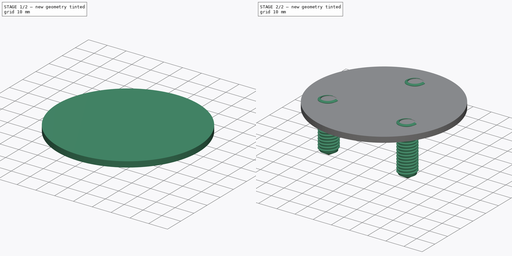
[diagram: build sequence overview — one tinted view per stage of 2, left to right]
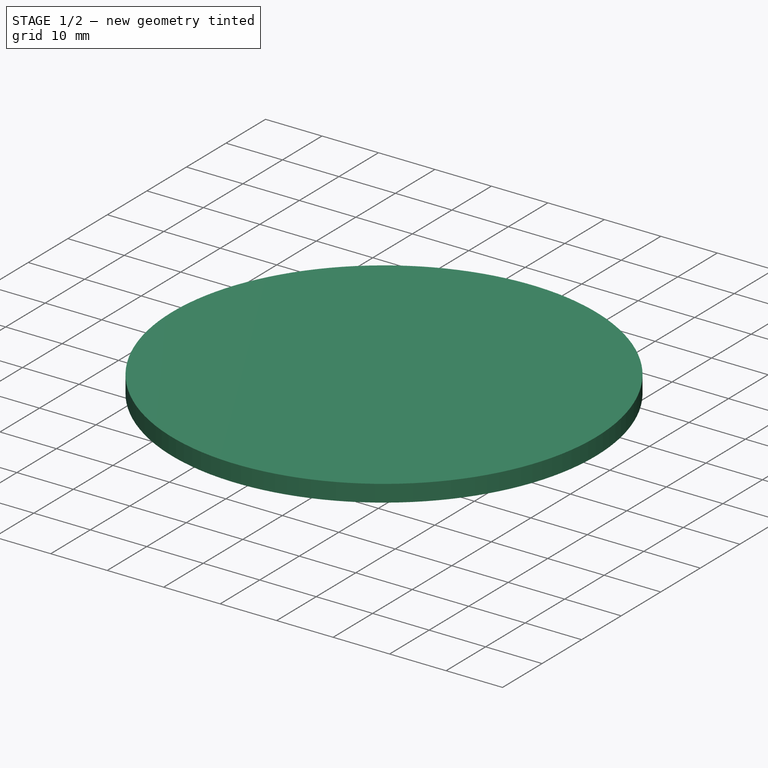
[diagram: stage 1 of 2 — iso view after this stage's code; geometry added in this stage tinted green]
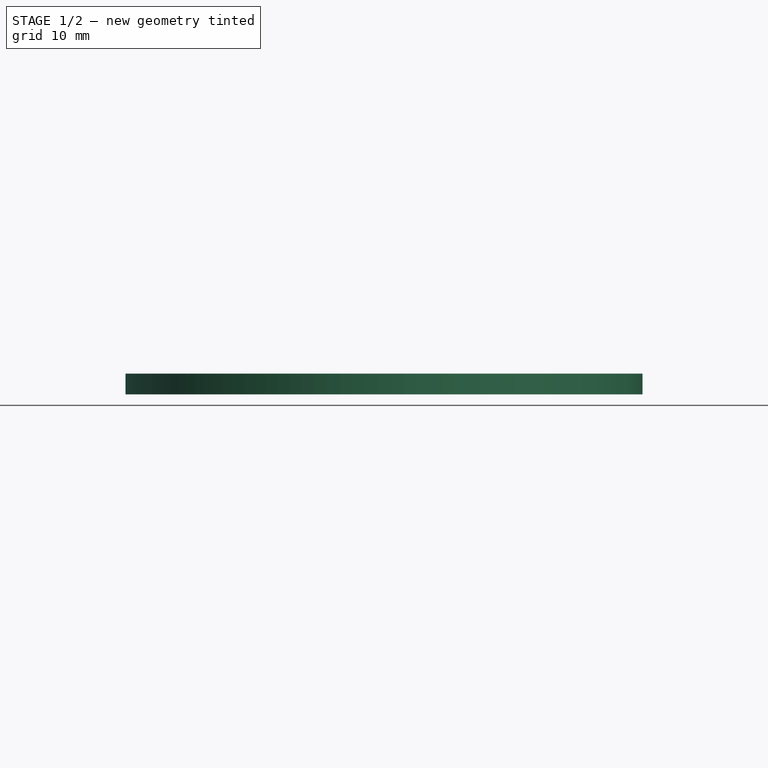
[diagram: stage 1 of 2 — front view after this stage's code; geometry added in this stage tinted green]
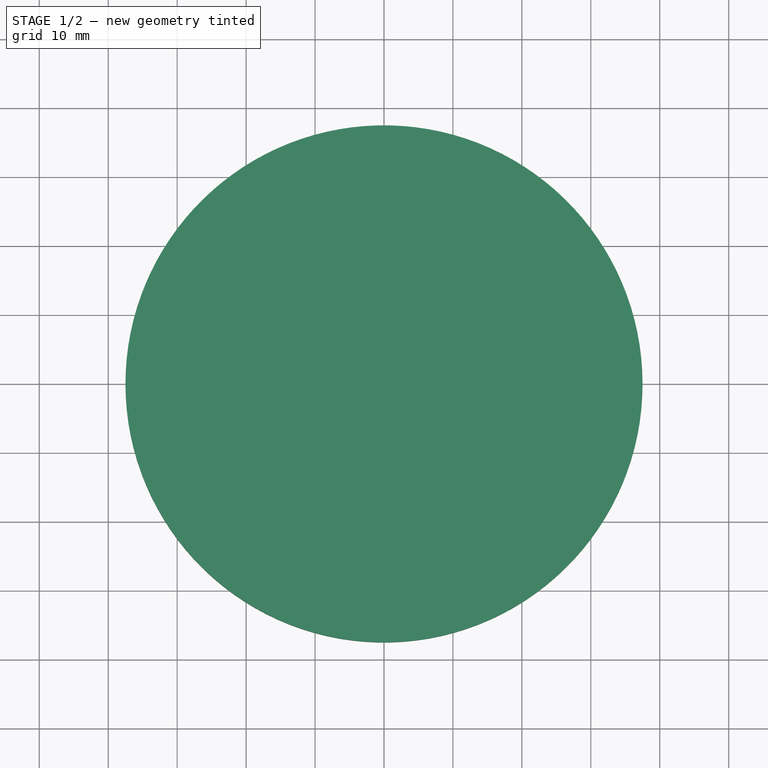
[diagram: stage 1 of 2 — top view after this stage's code; geometry added in this stage tinted green]
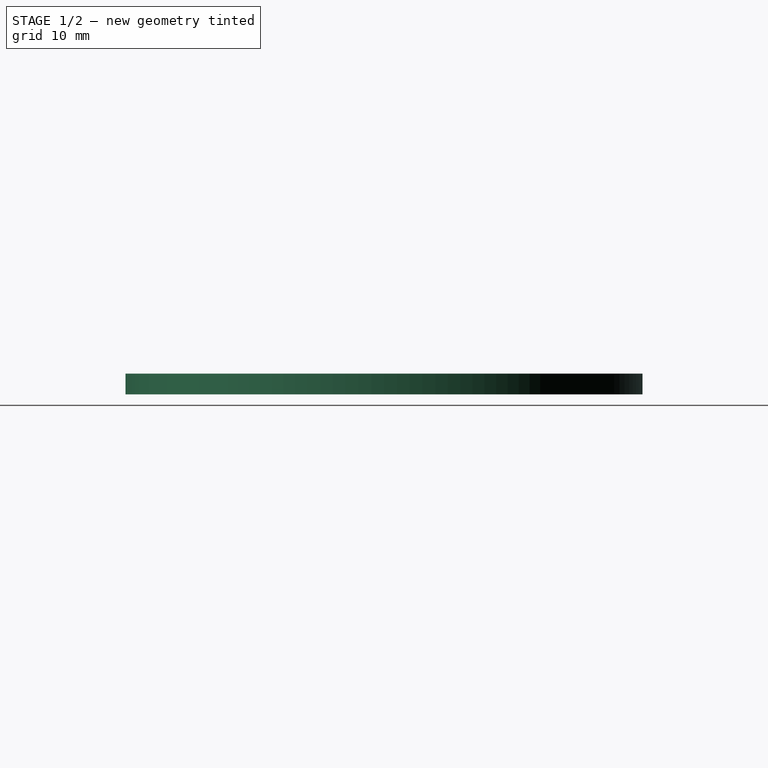
[diagram: stage 1 of 2 — right view after this stage's code; geometry added in this stage tinted green]
FCSTD DOCUMENT  (FreeCAD 0.20R25997 (Git))
Label: pdwrapper_draft_array_of_sketches_example
License: All rights reserved
LicenseURL: http://en.wikipedia.org/wiki/All_rights_reserved
objects: Sketcher::SketchObject×2, PartDesign::Pad×1, Part::FeaturePython×1, PartDesign::FeaturePython×1, PartDesign::Hole×1, PartDesign::FeatureAdditivePython×1, PartDesign::Body×1
note: 11 computed .brp shape members not serialized (recipe doc carries the construction recipe); baked Part::Feature solids carry a one-line shape summary decoded from their .brp

FEATURE [Sketcher::SketchObject] Sketch
  FullyConstrained = true
  MapMode = 5
  Support = -> [XY_Plane]
  sketch-geometry (1):
    g0: Circle CenterX=0 CenterY=0 CenterZ=0 NormalX=0 NormalY=0 NormalZ=1 AngleXU=0 Radius=37.5
  constraints (2):
    c: Coincident(g0,g-1)
    c: Diameter(g0) = 75
FEATURE [PartDesign::Pad] Pad
  Direction = (0,0,1)
  Length = 3
  Length2 = 100
  Profile = -> Sketch
  ReferenceAxis = -> Sketch [N_Axis]
  Reversed = true
  Type = 0
FEATURE [Sketcher::SketchObject] Sketch001
  FullyConstrained = true
  MapMode = 5
  Support = -> [XY_Plane]
  sketch-geometry (1):
    g0: Circle CenterX=0 CenterY=25 CenterZ=0 NormalX=0 NormalY=0 NormalZ=1 AngleXU=0 Radius=5
  constraints (3):
    c: PointOnObject(g0,g-2)
    c: Diameter(g0) = 10
    c: DistanceY(g0) = 25
FEATURE [Part::FeaturePython] Array  # Draft array (typed FeaturePython)
  Angle = 360
  ArrayType = 1
  Axis = (0,0,1)
  Base = -> Sketch001
  Center = (0,0,0)
  Fuse = true
  IntervalAxis = (0,0,0)
  IntervalX = (50,0,0)
  IntervalY = (0,50,0)
  IntervalZ = (0,0,50)
  NumberCircles = 3
  NumberPolar = 3
  NumberX = 2
  NumberY = 2
  NumberZ = 1
  RadialDistance = 50
  Symmetry = 1
  TangentialDistance = 25
FEATURE [PartDesign::FeaturePython] PDW_None  # link proxy (typed FeaturePython)
  BaseFeature = -> Pad
  Body = Body
  ClaimChildren = true
  EditPlacementAdjustments = false
  Enabled = 1
  LinkedObject = -> Array
  MeshTolerance = 0.1
  PatternBaseOffset = 0
  PatternBaseScale = 1
  PatternOffsetCut = false
  PatternOffsetJoin = 0
  PatternOffsetMode = 0
  PatternOperation = 0
  PatternOperationDefault = None
  PatternScaleCut = false
  PatternShapeOffset = 0
  PatternShapeScale = 1
  PatternToolOffset = 0
  PatternToolScale = 1
  RefineMesh = true
  ShapeManagement = 0
  ShowMeshProps = false
  ShowOffsetProps = false
  ShowScaleProps = false
  ShowWarnings = true
  TipBase = -> Pad
  TipBaseOffset = 0
  TipBaseScale = 1
  TipOffsetCut = false
  TipOffsetJoin = 0
  TipOffsetMode = 0
  TipOperation = 4
  TipOperationDefault = None
  TipScaleCut = false
  TipShapeOffset = 0
  TipShapeScale = 1
  TipTool = -> Pad
  TipToolOffset = 0
  TipToolScale = 1
  Type = None
  UsePatternBaseAddSubShape = false
  UsePatternToolAddSubShape = false
  UseTipBaseAddSubShape = false
  UseTipToolAddSubShape = false
  Version = 0.2021.10.15
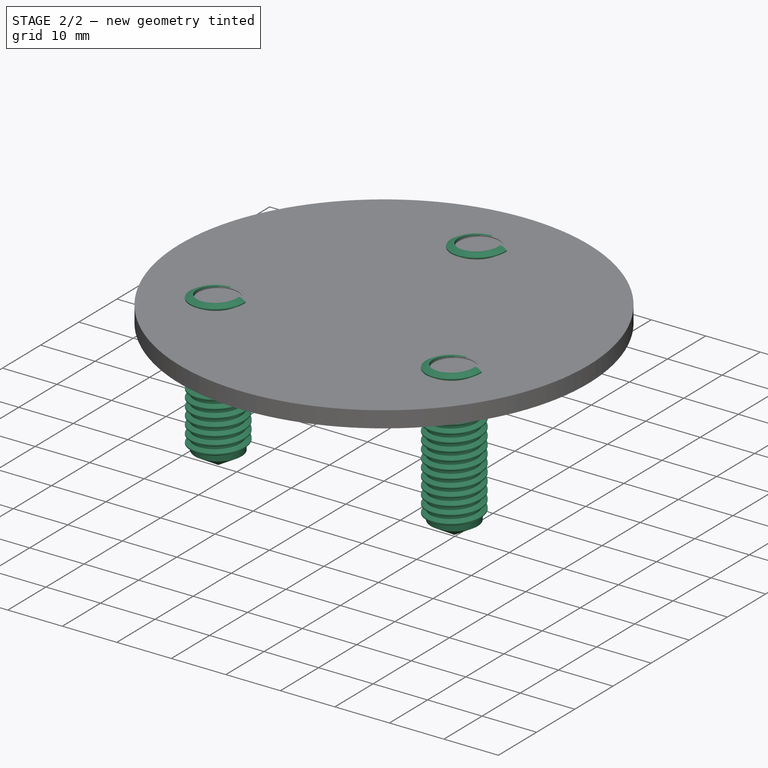
[diagram: stage 2 of 2 — iso view after this stage's code; geometry added in this stage tinted green]
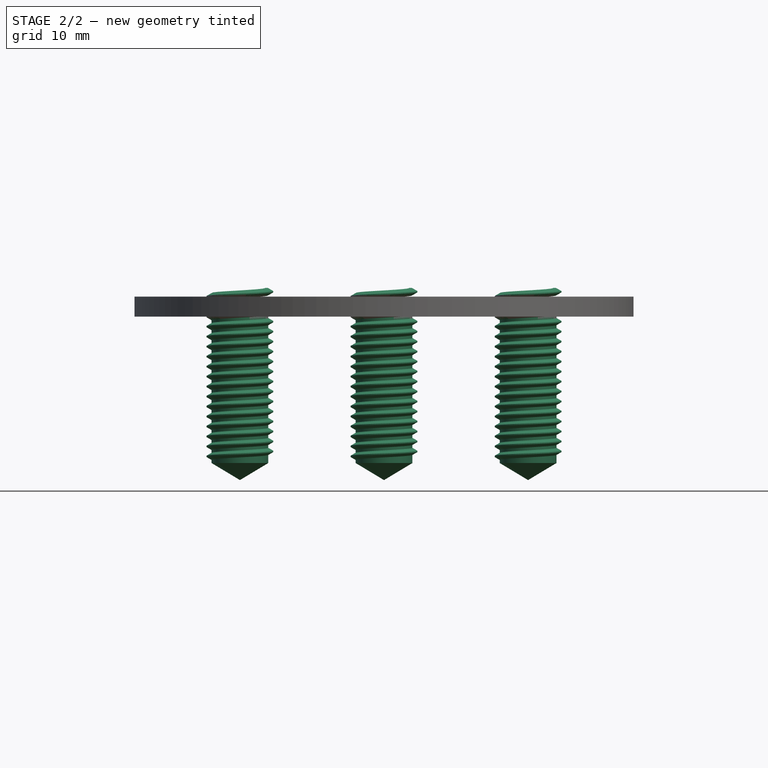
[diagram: stage 2 of 2 — front view after this stage's code; geometry added in this stage tinted green]
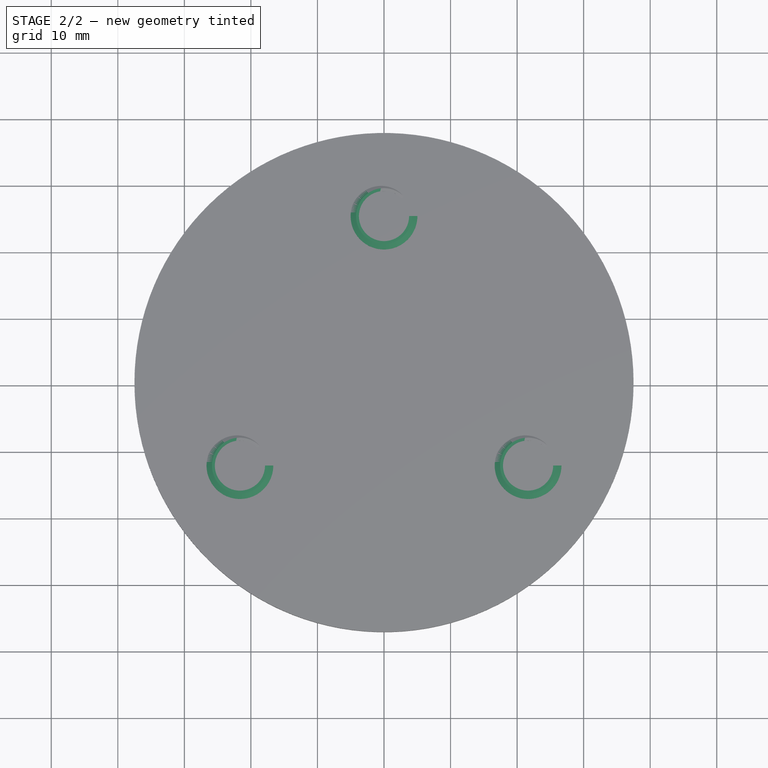
[diagram: stage 2 of 2 — top view after this stage's code; geometry added in this stage tinted green]
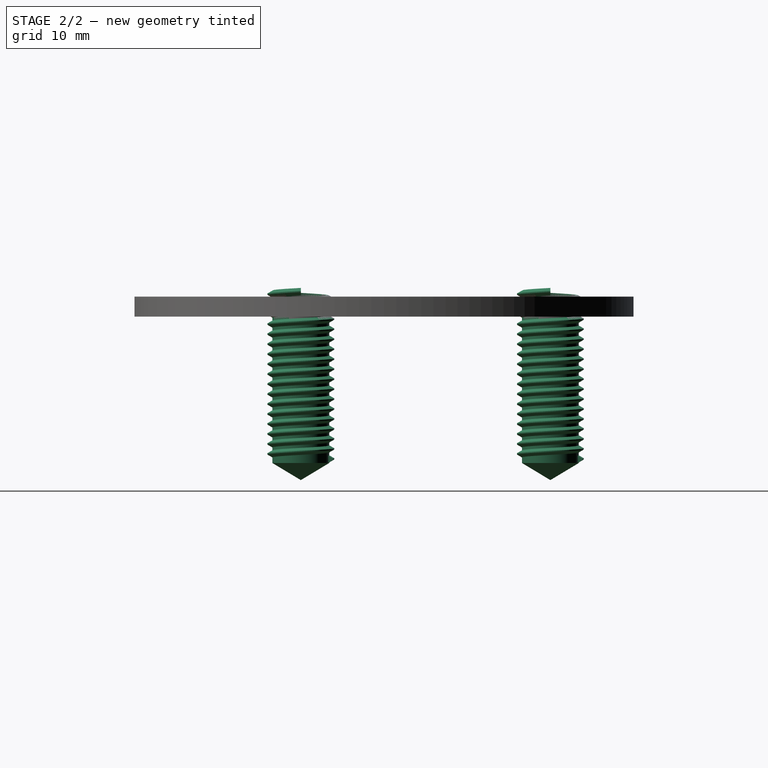
[diagram: stage 2 of 2 — right view after this stage's code; geometry added in this stage tinted green]
FEATURE [PartDesign::Hole] Hole
  BaseFeature = -> PDW_None
  CustomThreadClearance = 0
  Depth = 25
  DepthType = 0
  Diameter = 8.532
  DrillForDepth = false
  DrillPoint = 1
  DrillPointAngle = 118
  HoleCutCountersinkAngle = 90
  HoleCutCustomValues = false
  HoleCutDepth = 0
  HoleCutDiameter = 6.1
  HoleCutType = 0
  ModelThread = true
  Profile = -> Array
  Tapered = false
  TaperedAngle = 90
  ThreadClass = 0
  ThreadDepth = 25
  ThreadDepthType = 0
  ThreadDirection = 0
  ThreadFit = 0
  ThreadSize = 18
  ThreadType = 1
  Threaded = true
  UseCustomThreadClearance = false
FEATURE [PartDesign::FeatureAdditivePython] PDW_Add  # link proxy (typed FeaturePython)
  BaseFeature = -> Hole
  Body = Body
  ClaimChildren = false
  EditPlacementAdjustments = false
  Enabled = 1
  LinkedObject = -> Hole
  MeshTolerance = 0.1
  PatternBase = -> PDW_None
  PatternBaseOffset = 0
  PatternBaseScale = 1
  PatternOffsetCut = false
  PatternOffsetJoin = 0
  PatternOffsetMode = 0
  PatternOperation = 0
  PatternOperationDefault = None
  PatternScaleCut = false
  PatternShapeOffset = 0
  PatternShapeScale = 1
  PatternTool = -> Hole
  PatternToolOffset = 0
  PatternToolScale = 1
  RefineMesh = true
  ShapeManagement = 0
  ShowMeshProps = false
  ShowOffsetProps = false
  ShowScaleProps = false
  ShowWarnings = true
  TipBase = -> PDW_None
  TipBaseOffset = 0
  TipBaseScale = 1
  TipOffsetCut = false
  TipOffsetJoin = 0
  TipOffsetMode = 0
  TipOperation = 0
  TipOperationDefault = Fuse
  TipScaleCut = false
  TipShapeOffset = 0
  TipShapeScale = 1
  TipTool = -> Hole
  TipToolOffset = 0
  TipToolScale = 1
  Type = Additive
  UsePatternBaseAddSubShape = false
  UsePatternToolAddSubShape = true
  UseTipBaseAddSubShape = false
  UseTipToolAddSubShape = true
  Version = 0.2021.10.15
FEATURE [PartDesign::Body] Body
  Group = -> [Sketch,Pad,PDW_None,Sketch001,Array,Hole,PDW_Add]
  Origin = -> Origin
  Tip = -> PDW_Add
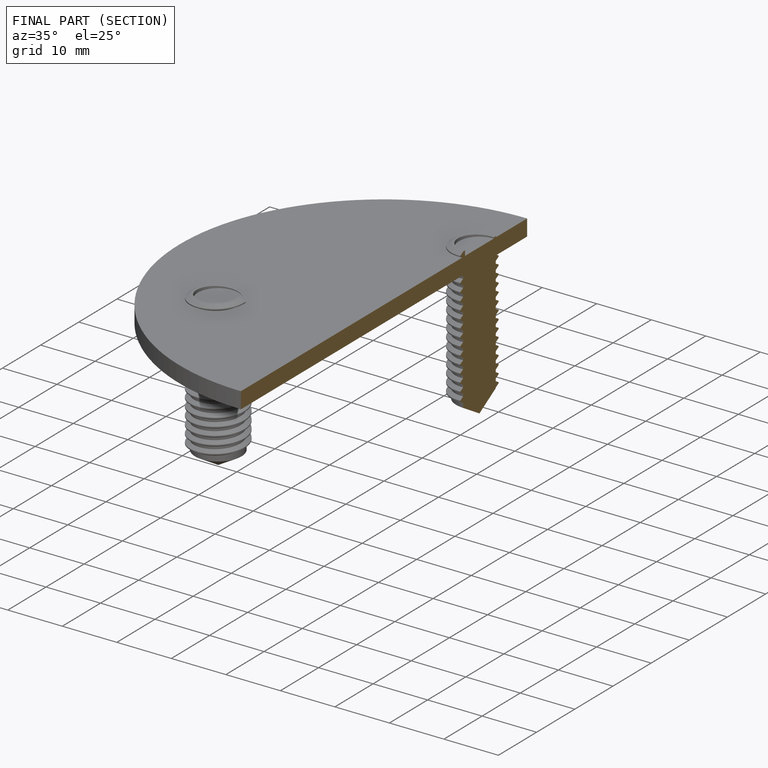
[diagram: finished part — half-section view (interior)]
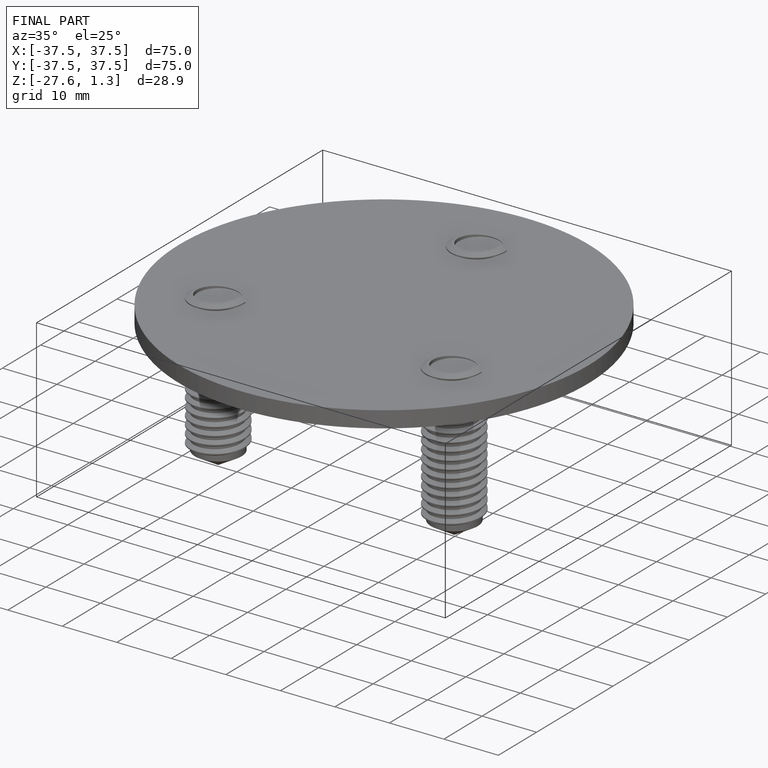
[diagram: finished part — iso view with bounding-box wireframe]
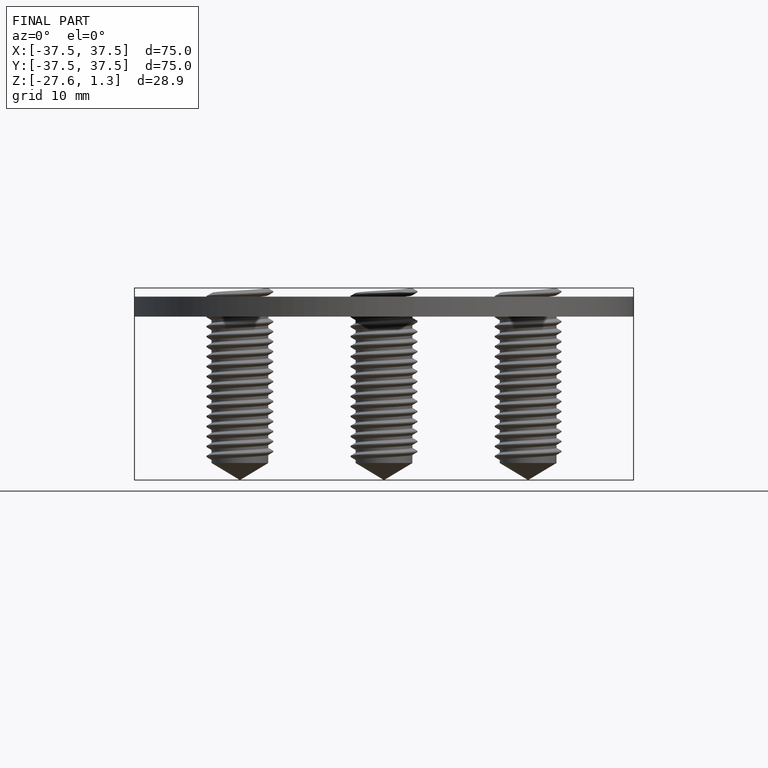
[diagram: finished part — front view with bounding-box wireframe]
